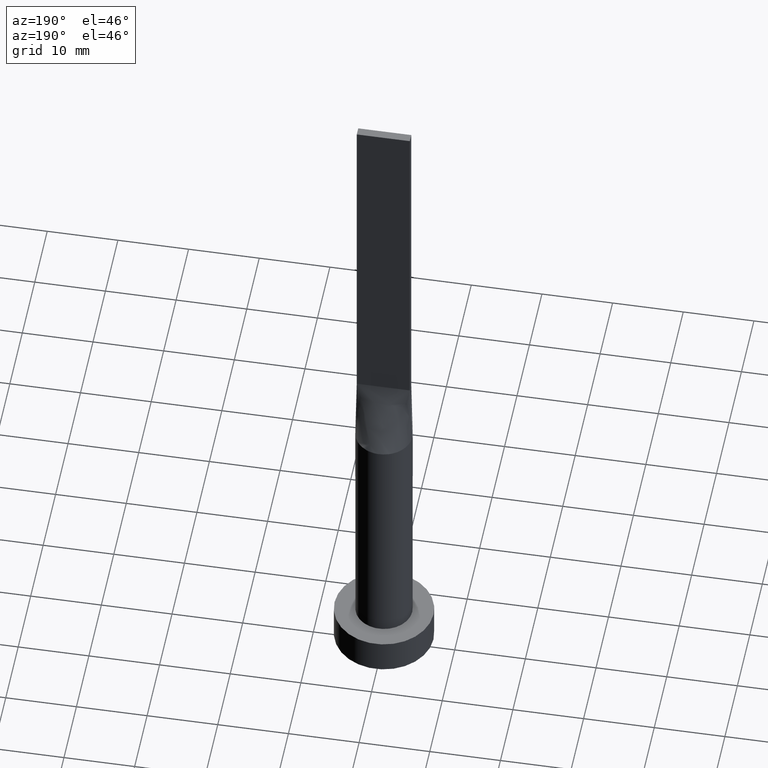
[diagram: clean part render]
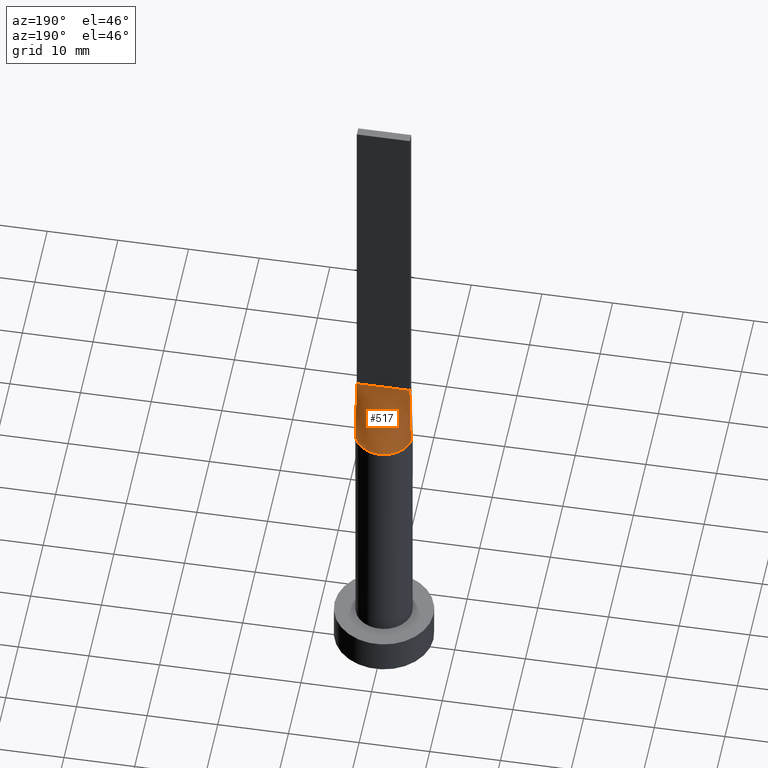
[diagram: same view with one face highlighted and labeled with its STEP entity id]
A machine part, auxiliary view. The second image highlights one B-rep face of the part: STEP entity #517.
In plain terms, the highlighted face is a freeform B-spline surface patch.
Its self-contained STEP definition (entity closure, byte-faithful):
#2 = CARTESIAN_POINT ( 'NONE',  ( 3.461914487322979017, 2.043998057340944197, 40.00000000000000000 ) ) ;
#4 = CARTESIAN_POINT ( 'NONE',  ( -2.553164211252348714, 3.116528153703943538, 39.99999999999999289 ) ) ;
#13 = CARTESIAN_POINT ( 'NONE',  ( 3.897760447583618948, 0.9569750049467118380, 40.00000000000000000 ) ) ;
#27 = CARTESIAN_POINT ( 'NONE',  ( -3.461914487322979905, 2.043998057340944197, 40.00000000000000711 ) ) ;
#33 = CARTESIAN_POINT ( 'NONE',  ( 1.562499999999994893, 0.6000000000000000888, 50.00000000000000000 ) ) ;
#42 = EDGE_CURVE ( 'NONE', #57, #52, #522, .T. ) ;
#48 = CARTESIAN_POINT ( 'NONE',  ( 3.897760447583618948, 0.9569750049467118380, 40.00000000000000000 ) ) ;
#52 = VERTEX_POINT ( 'NONE', #215 ) ;
#57 = VERTEX_POINT ( 'NONE', #482 ) ;
#62 = VERTEX_POINT ( 'NONE', #129 ) ;
#72 = CARTESIAN_POINT ( 'NONE',  ( 0.3124999999999934497, 0.6000000000000000888, 50.00000000000000711 ) ) ;
#75 = CARTESIAN_POINT ( 'NONE',  ( -3.125000000000000888, 0.6000000000000000888, 50.00000000000000000 ) ) ;
#78 = CARTESIAN_POINT ( 'NONE',  ( -3.437500000000000444, 0.6000000000000000888, 50.00000000000000000 ) ) ;
#84 = CARTESIAN_POINT ( 'NONE',  ( 2.499999999999996003, 0.6000000000000000888, 50.00000000000000000 ) ) ;
#97 = CARTESIAN_POINT ( 'NONE',  ( 2.553164211252348714, 3.116528153703943538, 40.00000000000000000 ) ) ;
#98 = CARTESIAN_POINT ( 'NONE',  ( -1.134810363096319996, 3.874001625491799938, 40.00000000000000711 ) ) ;
#100 = CARTESIAN_POINT ( 'NONE',  ( 1.134810363096318664, 3.874001625491799050, 40.00000000000000000 ) ) ;
#128 = CARTESIAN_POINT ( 'NONE',  ( -2.187500000000003109, 0.6000000000000000888, 50.00000000000000000 ) ) ;
#129 = CARTESIAN_POINT ( 'NONE',  ( 3.950097303404373150, 0.6320148730971616446, 40.00000000000000000 ) ) ;
#139 = CARTESIAN_POINT ( 'NONE',  ( -2.127794970397209884, 3.430476893735948440, 39.99999999999999289 ) ) ;
#158 = CARTESIAN_POINT ( 'NONE',  ( -2.553164211252348714, 3.116528153703943538, 39.99999999999999289 ) ) ;
#164 = CARTESIAN_POINT ( 'NONE',  ( -2.500000000000002665, 0.6000000000000000888, 50.00000000000000000 ) ) ;
#166 = CARTESIAN_POINT ( 'NONE',  ( 3.800365609718893367, 1.311488165564687058, 40.00000000000000711 ) ) ;
#175 = VECTOR ( 'NONE', #250, 1000.000000000000000 ) ;
#179 = CARTESIAN_POINT ( 'NONE',  ( 3.219262664220058134, 2.422342486356523938, 39.99999999999999289 ) ) ;
#181 = CARTESIAN_POINT ( 'NONE',  ( 2.127794970397208107, 3.430476893735948885, 39.99999999999999289 ) ) ;
#195 = CARTESIAN_POINT ( 'NONE',  ( 3.437499999999998668, 0.6000000000000001998, 50.00000000000000000 ) ) ;
#209 = CARTESIAN_POINT ( 'NONE',  ( 1.134810363096318664, 3.874001625491799050, 40.00000000000000000 ) ) ;
#210 = CARTESIAN_POINT ( 'NONE',  ( -3.750000000000000000, 0.6000000000000001998, 50.00000000000000000 ) ) ;
#211 = CARTESIAN_POINT ( 'NONE',  ( 2.127794970397208107, 3.430476893735948885, 39.99999999999999289 ) ) ;
#214 = CARTESIAN_POINT ( 'NONE',  ( -1.250000000000004663, 0.6000000000000000888, 50.00000000000000000 ) ) ;
#215 = CARTESIAN_POINT ( 'NONE',  ( -3.750000000000000000, 0.6000000000000001998, 50.00000000000000000 ) ) ;
#216 = CARTESIAN_POINT ( 'NONE',  ( 2.187499999999996003, 0.6000000000000000888, 50.00000000000000000 ) ) ;
#226 = DIRECTION ( 'NONE',  ( 0.01997216621675832263, -0.003195546594681204517, 0.9997954296047624201 ) ) ;
#230 = VERTEX_POINT ( 'NONE', #456 ) ;
#234 = VECTOR ( 'NONE', #226, 1000.000000000000000 ) ;
#241 = CARTESIAN_POINT ( 'NONE',  ( 3.949762527666821565, 0.6319620044266911485, 40.00000000000000000 ) ) ;
#250 = DIRECTION ( 'NONE',  ( -1.000000000000000000, -0.000000000000000000, -0.000000000000000000 ) ) ;
#254 = EDGE_CURVE ( 'NONE', #62, #230, #494, .T. ) ;
#263 = CARTESIAN_POINT ( 'NONE',  ( -0.6250000000000056621, 0.6000000000000000888, 50.00000000000000000 ) ) ;
#266 = ORIENTED_EDGE ( 'NONE', *, *, #315, .T. ) ;
#268 = CARTESIAN_POINT ( 'NONE',  ( -3.750000000000000000, 0.6000000000000001998, 50.00000000000000000 ) ) ;
#269 = LINE ( 'NONE', #449, #234 ) ;
#273 = CARTESIAN_POINT ( 'NONE',  ( -3.461914487322979905, 2.043998057340944197, 40.00000000000000711 ) ) ;
#278 = CARTESIAN_POINT ( 'NONE',  ( -3.897760447583618504, 0.9569750049467115049, 40.00000000000000000 ) ) ;
#285 = ORIENTED_EDGE ( 'NONE', *, *, #42, .F. ) ;
#299 = CARTESIAN_POINT ( 'NONE',  ( -3.800365609718893811, 1.311488165564686392, 40.00000000000000000 ) ) ;
#300 = CARTESIAN_POINT ( 'NONE',  ( 3.849881263833410561, 0.6159810022133449525, 45.00000000000000000 ) ) ;
#305 = CARTESIAN_POINT ( 'NONE',  ( -0.3125000000000063283, 0.6000000000000000888, 50.00000000000000711 ) ) ;
#310 = CARTESIAN_POINT ( 'NONE',  ( 0.6249999999999938938, 0.6000000000000000888, 50.00000000000000000 ) ) ;
#315 = EDGE_CURVE ( 'NONE', #230, #52, #269, .T. ) ;
#316 = CARTESIAN_POINT ( 'NONE',  ( -0.5684794080625158452, 3.999999999999999112, 39.99999999999999289 ) ) ;
#320 = CARTESIAN_POINT ( 'NONE',  ( -3.800365609718893811, 1.311488165564686392, 40.00000000000000000 ) ) ;
#327 = ORIENTED_EDGE ( 'NONE', *, *, #471, .F. ) ;
#349 = CARTESIAN_POINT ( 'NONE',  ( 1.249999999999994671, 0.6000000000000000888, 50.00000000000000000 ) ) ;
#353 = VECTOR ( 'NONE', #434, 1000.000000000000000 ) ;
#361 = CARTESIAN_POINT ( 'NONE',  ( -3.950102418235696522, 0.6320155757311002320, 40.00000000000000000 ) ) ;
#368 = CARTESIAN_POINT ( 'NONE',  ( 3.800365609718893367, 1.311488165564687058, 40.00000000000000711 ) ) ;
#372 = ORIENTED_EDGE ( 'NONE', *, *, #254, .T. ) ;
#387 = CARTESIAN_POINT ( 'NONE',  ( 0.5684794080625145130, 4.000000000000000000, 39.99999999999999289 ) ) ;
#398 = B_SPLINE_SURFACE_WITH_KNOTS ( 'NONE', 3, 1, ( 
 ( #241, #418 ),
 ( #13, #195 ),
 ( #166, #528 ),
 ( #570, #84 ),
 ( #563, #216 ),
 ( #438, #33 ),
 ( #211, #349 ),
 ( #209, #310 ),
 ( #387, #72 ),
 ( #568, #305 ),
 ( #480, #263 ),
 ( #441, #214 ),
 ( #158, #565 ),
 ( #524, #128 ),
 ( #27, #164 ),
 ( #299, #75 ),
 ( #518, #78 ),
 ( #521, #268 ) ),
 .UNSPECIFIED., .F., .F., .F.,
 ( 4, 2, 2, 2, 2, 2, 2, 2, 4 ),
 ( 2, 2 ),
 ( 0.000000000000000000, 0.1249999999999999445, 0.2499999999999998890, 0.3749999999999998335, 0.4999999999999997780, 0.6249999999999997780, 0.7499999999999998890, 0.8749999999999998890, 1.000000000000000000 ),
 ( 0.000000000000000000, 1.000000000000000000 ),
 .UNSPECIFIED. ) ;
#418 = CARTESIAN_POINT ( 'NONE',  ( 3.750000000000000000, 0.6000000000000001998, 50.00000000000000000 ) ) ;
#434 = DIRECTION ( 'NONE',  ( -0.01997216621675832263, -0.003195546594681161149, 0.9997954296047624201 ) ) ;
#438 = CARTESIAN_POINT ( 'NONE',  ( 2.553164211252348714, 3.116528153703943538, 40.00000000000000000 ) ) ;
#441 = CARTESIAN_POINT ( 'NONE',  ( -2.127794970397209884, 3.430476893735948440, 39.99999999999999289 ) ) ;
#449 = CARTESIAN_POINT ( 'NONE',  ( -3.849881263833410561, 0.6159810022133451746, 45.00000000000000000 ) ) ;
#456 = CARTESIAN_POINT ( 'NONE',  ( -3.950102418235696522, 0.6320155757311002320, 40.00000000000000000 ) ) ;
#463 = FACE_OUTER_BOUND ( 'NONE', #537, .T. ) ;
#471 = EDGE_CURVE ( 'NONE', #62, #57, #516, .T. ) ;
#480 = CARTESIAN_POINT ( 'NONE',  ( -1.134810363096319996, 3.874001625491799938, 40.00000000000000711 ) ) ;
#482 = CARTESIAN_POINT ( 'NONE',  ( 3.750000000000000000, 0.6000000000000001998, 50.00000000000000000 ) ) ;
#492 = CARTESIAN_POINT ( 'NONE',  ( -3.219262664220059023, 2.422342486356523938, 39.99999999999998579 ) ) ;
#494 = B_SPLINE_CURVE_WITH_KNOTS ( 'NONE', 3,
 ( #542, #48, #368, #2, #179, #97, #181, #100, #501, #316, #98, #139, #4, #492, #273, #320, #278, #361 ),
 .UNSPECIFIED., .F., .F.,
 ( 4, 2, 2, 2, 2, 2, 2, 2, 4 ),
 ( 0.000000000000000000, 0.1249999999999999445, 0.2499999999999998890, 0.3749999999999998335, 0.4999999999999997780, 0.6249999999999997780, 0.7499999999999998890, 0.8749999999999998890, 1.000000000000000000 ),
 .UNSPECIFIED. ) ;
#501 = CARTESIAN_POINT ( 'NONE',  ( 0.5684794080625145130, 4.000000000000000000, 39.99999999999999289 ) ) ;
#516 = LINE ( 'NONE', #300, #353 ) ;
#517 = ADVANCED_FACE ( 'NONE', ( #463 ), #398, .T. ) ;
#518 = CARTESIAN_POINT ( 'NONE',  ( -3.897760447583618504, 0.9569750049467115049, 40.00000000000000000 ) ) ;
#521 = CARTESIAN_POINT ( 'NONE',  ( -3.949762527666821565, 0.6319620044266903713, 40.00000000000000000 ) ) ;
#522 = LINE ( 'NONE', #210, #175 ) ;
#524 = CARTESIAN_POINT ( 'NONE',  ( -3.219262664220059023, 2.422342486356523938, 39.99999999999998579 ) ) ;
#528 = CARTESIAN_POINT ( 'NONE',  ( 3.124999999999997780, 0.6000000000000001998, 50.00000000000000000 ) ) ;
#537 = EDGE_LOOP ( 'NONE', ( #372, #266, #285, #327 ) ) ;
#542 = CARTESIAN_POINT ( 'NONE',  ( 3.950097303404373150, 0.6320148730971616446, 40.00000000000000000 ) ) ;
#563 = CARTESIAN_POINT ( 'NONE',  ( 3.219262664220058134, 2.422342486356523938, 39.99999999999999289 ) ) ;
#565 = CARTESIAN_POINT ( 'NONE',  ( -1.562500000000004441, 0.6000000000000000888, 50.00000000000000000 ) ) ;
#568 = CARTESIAN_POINT ( 'NONE',  ( -0.5684794080625158452, 3.999999999999999112, 39.99999999999999289 ) ) ;
#570 = CARTESIAN_POINT ( 'NONE',  ( 3.461914487322979017, 2.043998057340944197, 40.00000000000000000 ) ) ;